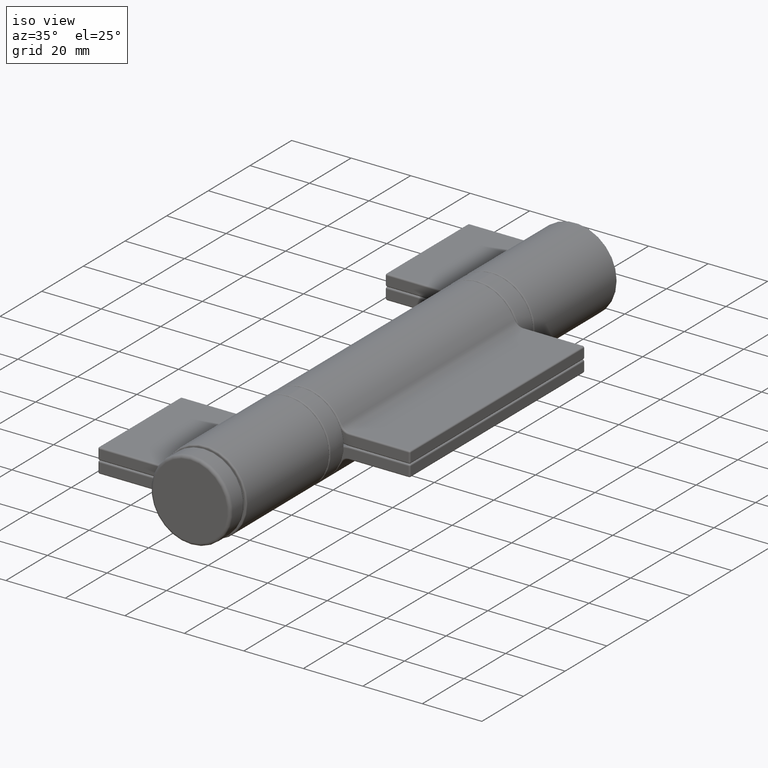
[diagram: clean part render]
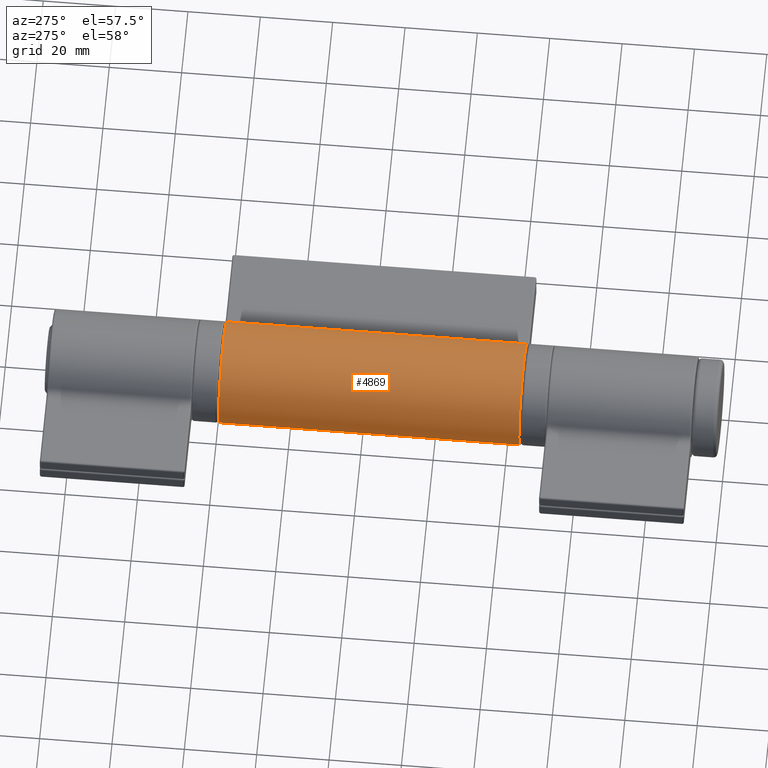
[diagram: tour spotlight — one face highlighted and labeled with its STEP entity id]
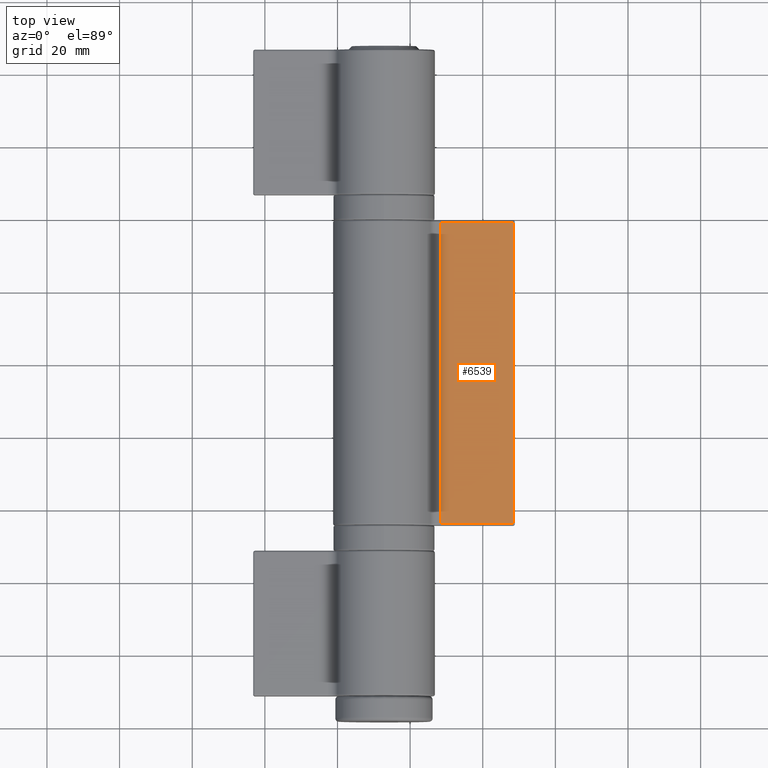
[diagram: tour spotlight — one face highlighted and labeled with its STEP entity id]
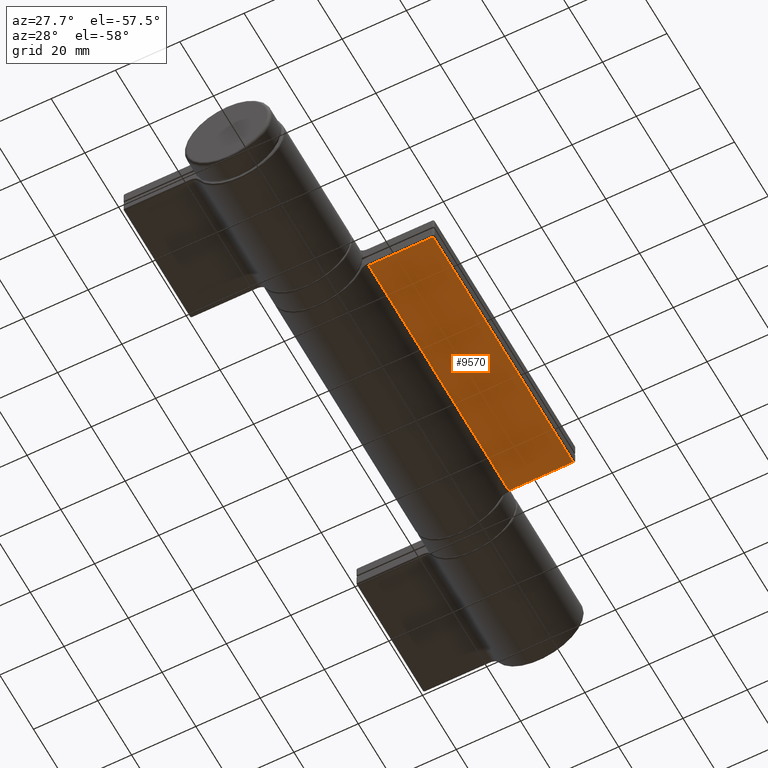
[diagram: tour spotlight — one face highlighted and labeled with its STEP entity id]
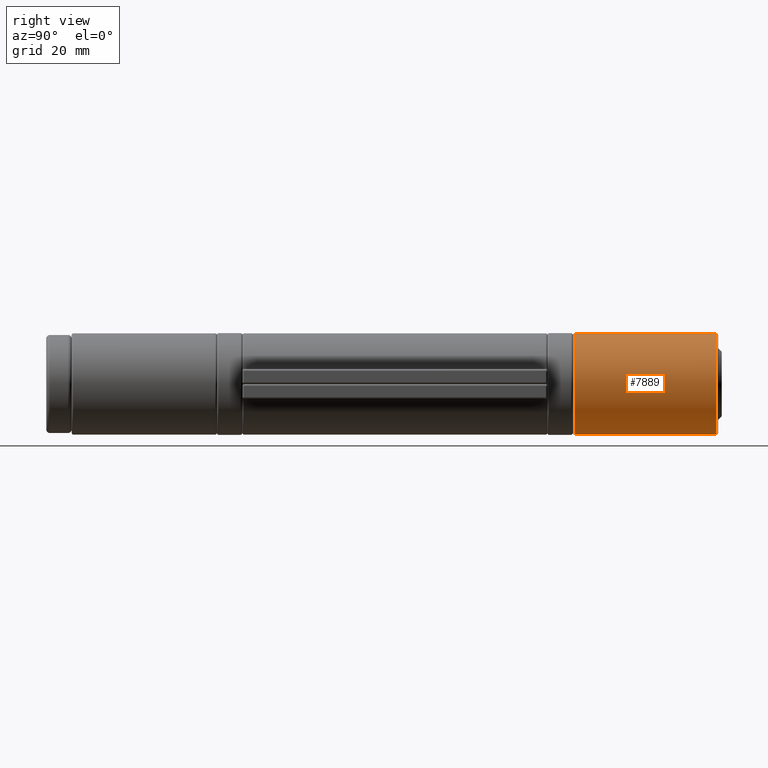
[diagram: tour spotlight — one face highlighted and labeled with its STEP entity id]
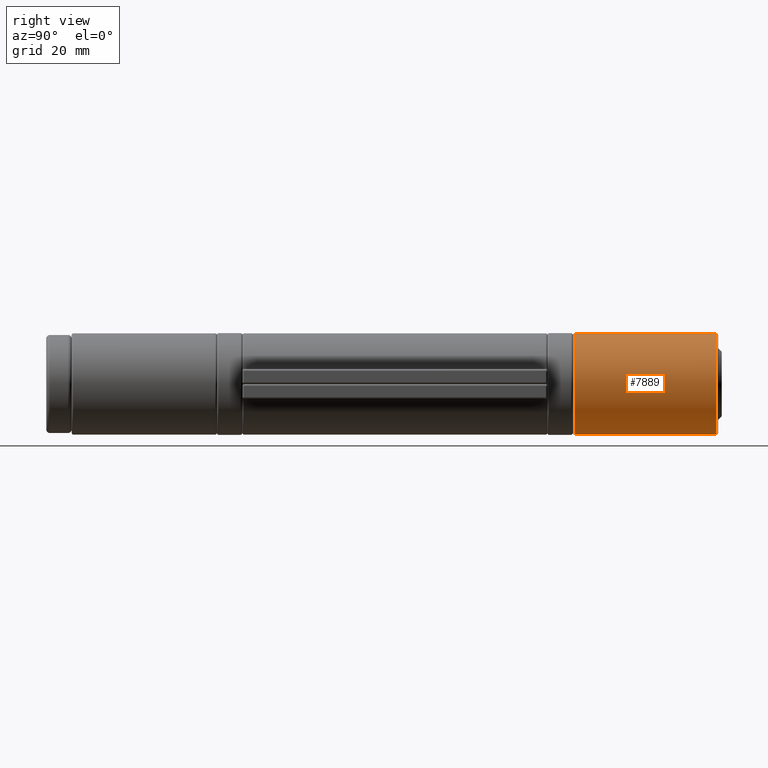
[diagram: tour spotlight — one face highlighted and labeled with its STEP entity id]
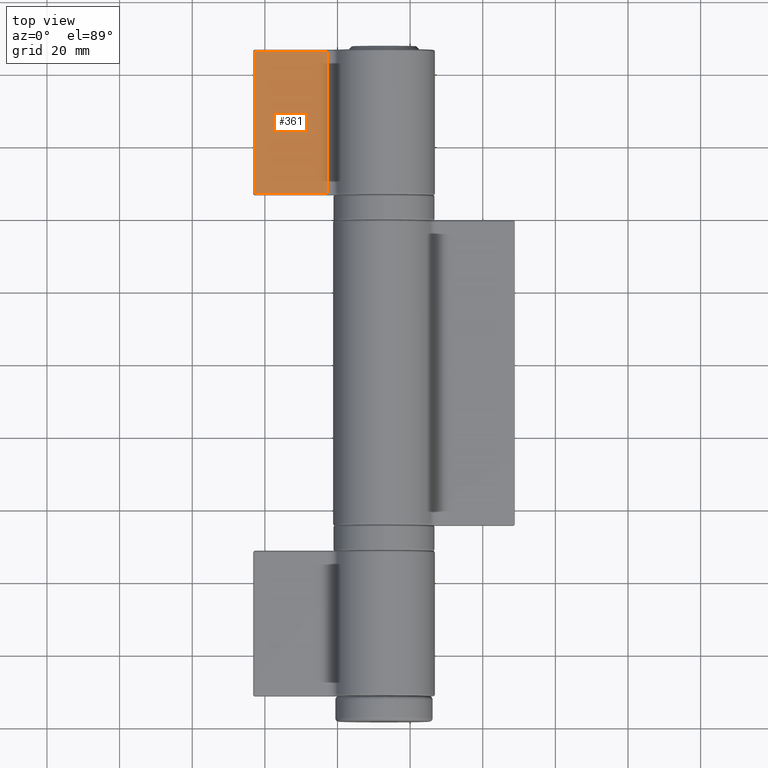
[diagram: tour spotlight — one face highlighted and labeled with its STEP entity id]
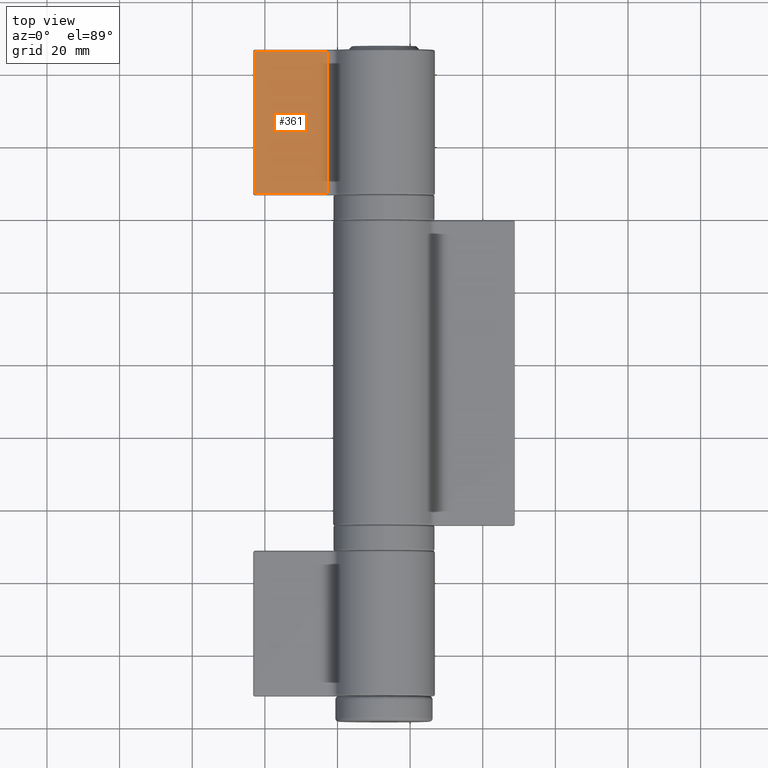
[diagram: tour spotlight — one face highlighted and labeled with its STEP entity id]
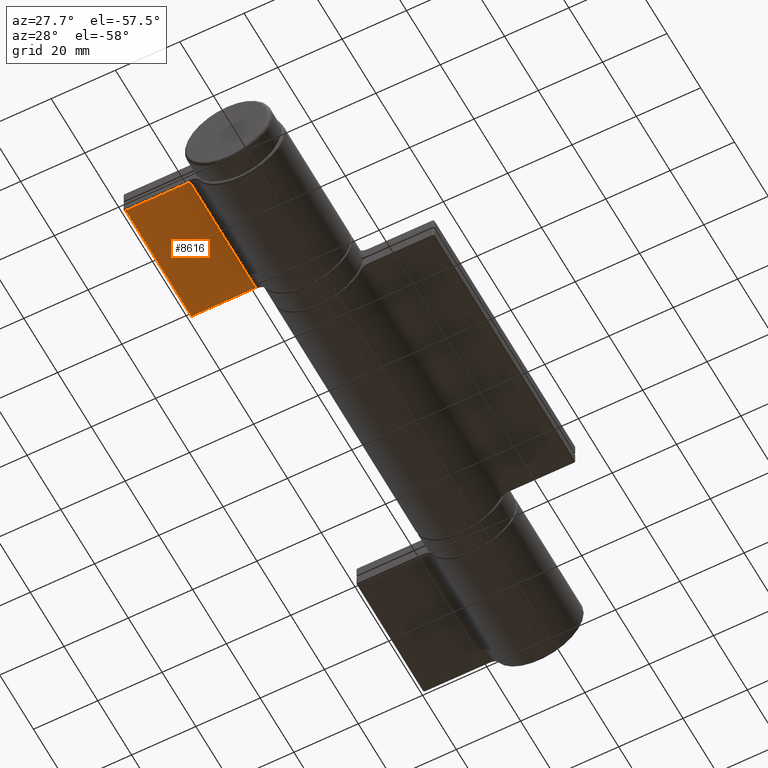
[diagram: tour spotlight — one face highlighted and labeled with its STEP entity id]
A machine part: a face-by-face anatomy tour. The part has 320 B-rep faces; the first image is the clean iso view, then the 8 largest visible faces are spotlighted one at a time (largest first), each with its STEP entity span.

Face 1 — auxiliary view, entity #4869. In plain terms, the highlighted cylindrical surface (partial cylindrical patch) has radius 14 mm, axis along (-0, -1, 0).
Definition (entity closure, byte-faithful):
#456 = CARTESIAN_POINT ( 'NONE',  ( -5.805882352941177160, -41.49999999999995737, 12.73937714740427296 ) ) ;
#471 = AXIS2_PLACEMENT_3D ( 'NONE', #3209, #10594, #4268 ) ;
#939 = DIRECTION ( 'NONE',  ( -0.000000000000000000, -1.000000000000000000, 0.000000000000000000 ) ) ;
#1735 = CIRCLE ( 'NONE', #10100, 13.99999999999999822 ) ;
#1955 = EDGE_LOOP ( 'NONE', ( #2509, #3079, #5969, #3014 ) ) ;
#2195 = EDGE_CURVE ( 'NONE', #10006, #4832, #1735, .T. ) ;
#2249 = CARTESIAN_POINT ( 'NONE',  ( -5.805882352941177160, 41.50000000000000000, 12.73937714740427296 ) ) ;
#2509 = ORIENTED_EDGE ( 'NONE', *, *, #2641, .T. ) ;
#2641 = EDGE_CURVE ( 'NONE', #4832, #6936, #8146, .T. ) ;
#3014 = ORIENTED_EDGE ( 'NONE', *, *, #2195, .T. ) ;
#3078 = CARTESIAN_POINT ( 'NONE',  ( 5.805882352941178048, 42.00000000000000000, 12.73937714740427118 ) ) ;
#3079 = ORIENTED_EDGE ( 'NONE', *, *, #5037, .T. ) ;
#3209 = CARTESIAN_POINT ( 'NONE',  ( 0.000000000000000000, 42.00000000000000000, 0.000000000000000000 ) ) ;
#4153 = DIRECTION ( 'NONE',  ( -0.000000000000000000, -1.000000000000000000, -0.000000000000000000 ) ) ;
#4268 = DIRECTION ( 'NONE',  ( 0.000000000000000000, 0.000000000000000000, -1.000000000000000000 ) ) ;
#4712 = VERTEX_POINT ( 'NONE', #456 ) ;
#4832 = VERTEX_POINT ( 'NONE', #5642 ) ;
#4837 = VECTOR ( 'NONE', #8911, 1000.000000000000000 ) ;
#4869 = ADVANCED_FACE ( 'NONE', ( #7884 ), #5624, .T. ) ;
#5001 = DIRECTION ( 'NONE',  ( 0.000000000000000000, 0.000000000000000000, 1.000000000000000000 ) ) ;
#5037 = EDGE_CURVE ( 'NONE', #6936, #4712, #6945, .T. ) ;
#5624 = CYLINDRICAL_SURFACE ( 'NONE', #471, 13.99999999999999822 ) ;
#5642 = CARTESIAN_POINT ( 'NONE',  ( 5.805882352941178048, 41.50000000000000000, 12.73937714740427118 ) ) ;
#5969 = ORIENTED_EDGE ( 'NONE', *, *, #8941, .F. ) ;
#6562 = AXIS2_PLACEMENT_3D ( 'NONE', #9390, #7759, #7790 ) ;
#6936 = VERTEX_POINT ( 'NONE', #7824 ) ;
#6945 = CIRCLE ( 'NONE', #6562, 13.99999999999999822 ) ;
#7017 = LINE ( 'NONE', #10818, #9356 ) ;
#7759 = DIRECTION ( 'NONE',  ( 0.000000000000000000, 1.000000000000000000, -0.000000000000000000 ) ) ;
#7790 = DIRECTION ( 'NONE',  ( 0.000000000000000000, 0.000000000000000000, 1.000000000000000000 ) ) ;
#7824 = CARTESIAN_POINT ( 'NONE',  ( 5.805882352941178048, -41.49999999999997158, 12.73937714740427118 ) ) ;
#7884 = FACE_OUTER_BOUND ( 'NONE', #1955, .T. ) ;
#8146 = LINE ( 'NONE', #3078, #4837 ) ;
#8911 = DIRECTION ( 'NONE',  ( -0.000000000000000000, -1.000000000000000000, -0.000000000000000000 ) ) ;
#8941 = EDGE_CURVE ( 'NONE', #10006, #4712, #7017, .T. ) ;
#9182 = CARTESIAN_POINT ( 'NONE',  ( 0.000000000000000000, 41.50000000000000000, 0.000000000000000000 ) ) ;
#9356 = VECTOR ( 'NONE', #4153, 1000.000000000000000 ) ;
#9390 = CARTESIAN_POINT ( 'NONE',  ( 0.000000000000000000, -41.50000000000000000, 0.000000000000000000 ) ) ;
#10006 = VERTEX_POINT ( 'NONE', #2249 ) ;
#10100 = AXIS2_PLACEMENT_3D ( 'NONE', #9182, #939, #5001 ) ;
#10594 = DIRECTION ( 'NONE',  ( -0.000000000000000000, -1.000000000000000000, -0.000000000000000000 ) ) ;
#10818 = CARTESIAN_POINT ( 'NONE',  ( -5.805882352941177160, 42.00000000000000000, 12.73937714740427296 ) ) ;

Face 2 — top view, entity #6539. In plain terms, the highlighted planar face has unit normal (0, 0, -1).
Definition (entity closure, byte-faithful):
#253 = CARTESIAN_POINT ( 'NONE',  ( -4.049999999999998934, 41.50000000000000000, 35.50000000000000000 ) ) ;
#326 = VERTEX_POINT ( 'NONE', #1258 ) ;
#406 = DIRECTION ( 'NONE',  ( 1.000000000000000000, 0.000000000000000000, -1.689877809520019662E-16 ) ) ;
#522 = EDGE_CURVE ( 'NONE', #326, #4129, #4996, .T. ) ;
#827 = VECTOR ( 'NONE', #4889, 1000.000000000000000 ) ;
#1038 = AXIS2_PLACEMENT_3D ( 'NONE', #8756, #406, #2043 ) ;
#1253 = PLANE ( 'NONE',  #1038 ) ;
#1258 = CARTESIAN_POINT ( 'NONE',  ( -4.050000000000002487, -41.49999999999997158, 15.46924367899090313 ) ) ;
#1555 = CARTESIAN_POINT ( 'NONE',  ( -4.050000000000005151, -41.50000000000000000, 6.844005128556086792E-16 ) ) ;
#1828 = CARTESIAN_POINT ( 'NONE',  ( -4.049999999999998934, -41.50000000000000000, 35.50000000000000000 ) ) ;
#2043 = DIRECTION ( 'NONE',  ( -1.689877809520019662E-16, 0.000000000000000000, -1.000000000000000000 ) ) ;
#2121 = EDGE_CURVE ( 'NONE', #4129, #9383, #6302, .T. ) ;
#2339 = CARTESIAN_POINT ( 'NONE',  ( -4.050000000000002487, 42.00000000000000000, 15.46924367899090313 ) ) ;
#2874 = FACE_OUTER_BOUND ( 'NONE', #8608, .T. ) ;
#2932 = VECTOR ( 'NONE', #7423, 1000.000000000000000 ) ;
#3805 = ORIENTED_EDGE ( 'NONE', *, *, #522, .T. ) ;
#3869 = ORIENTED_EDGE ( 'NONE', *, *, #2121, .T. ) ;
#3995 = EDGE_CURVE ( 'NONE', #8536, #326, #7359, .T. ) ;
#4050 = CARTESIAN_POINT ( 'NONE',  ( -4.049999999999998934, 42.00000000000000000, 35.50000000000000000 ) ) ;
#4074 = DIRECTION ( 'NONE',  ( -0.000000000000000000, -1.000000000000000000, -0.000000000000000000 ) ) ;
#4129 = VERTEX_POINT ( 'NONE', #1828 ) ;
#4889 = DIRECTION ( 'NONE',  ( -0.000000000000000000, 1.000000000000000000, -0.000000000000000000 ) ) ;
#4996 = LINE ( 'NONE', #1555, #2932 ) ;
#6302 = LINE ( 'NONE', #4050, #827 ) ;
#6539 = ADVANCED_FACE ( 'NONE', ( #2874 ), #1253, .F. ) ;
#7103 = CARTESIAN_POINT ( 'NONE',  ( -4.050000000000002487, 41.50000000000000000, 15.46924367899090313 ) ) ;
#7359 = LINE ( 'NONE', #2339, #8526 ) ;
#7423 = DIRECTION ( 'NONE',  ( 1.689877809520019662E-16, 0.000000000000000000, 1.000000000000000000 ) ) ;
#7831 = ORIENTED_EDGE ( 'NONE', *, *, #3995, .T. ) ;
#8069 = VECTOR ( 'NONE', #8810, 1000.000000000000000 ) ;
#8285 = ORIENTED_EDGE ( 'NONE', *, *, #9577, .T. ) ;
#8526 = VECTOR ( 'NONE', #4074, 1000.000000000000000 ) ;
#8536 = VERTEX_POINT ( 'NONE', #8845 ) ;
#8608 = EDGE_LOOP ( 'NONE', ( #7831, #3805, #3869, #8285 ) ) ;
#8756 = CARTESIAN_POINT ( 'NONE',  ( -4.050000000000005151, 42.00000000000000000, 6.844005128556086792E-16 ) ) ;
#8810 = DIRECTION ( 'NONE',  ( -1.689877809520019662E-16, -0.000000000000000000, -1.000000000000000000 ) ) ;
#8845 = CARTESIAN_POINT ( 'NONE',  ( -4.050000000000002487, 41.50000000000000000, 15.46924367899090313 ) ) ;
#9383 = VERTEX_POINT ( 'NONE', #253 ) ;
#9577 = EDGE_CURVE ( 'NONE', #9383, #8536, #10248, .T. ) ;
#10248 = LINE ( 'NONE', #7103, #8069 ) ;

Face 3 — auxiliary view, entity #9570. In plain terms, the highlighted planar face has unit normal (0, 0, -1).
Definition (entity closure, byte-faithful):
#16 = LINE ( 'NONE', #9956, #6821 ) ;
#453 = VERTEX_POINT ( 'NONE', #3177 ) ;
#647 = CARTESIAN_POINT ( 'NONE',  ( 4.050000000000002487, 41.50000000000000000, 15.46924367899090136 ) ) ;
#701 = DIRECTION ( 'NONE',  ( 8.449389047600098310E-17, 0.000000000000000000, 1.000000000000000000 ) ) ;
#917 = DIRECTION ( 'NONE',  ( 0.000000000000000000, -1.000000000000000000, 0.000000000000000000 ) ) ;
#1277 = LINE ( 'NONE', #3934, #7984 ) ;
#1344 = CARTESIAN_POINT ( 'NONE',  ( 4.050000000000002487, -41.50000000000000000, 15.46924367899090136 ) ) ;
#1646 = FACE_OUTER_BOUND ( 'NONE', #4118, .T. ) ;
#2136 = DIRECTION ( 'NONE',  ( -8.449389047600098310E-17, 0.000000000000000000, -1.000000000000000000 ) ) ;
#2753 = ORIENTED_EDGE ( 'NONE', *, *, #6686, .F. ) ;
#3055 = ORIENTED_EDGE ( 'NONE', *, *, #7965, .T. ) ;
#3177 = CARTESIAN_POINT ( 'NONE',  ( 4.050000000000003375, 41.50000000000000000, 35.49999999999999289 ) ) ;
#3783 = CARTESIAN_POINT ( 'NONE',  ( 4.050000000000000711, 42.00000000000000000, -3.422002564278038959E-16 ) ) ;
#3934 = CARTESIAN_POINT ( 'NONE',  ( 4.050000000000002487, 42.00000000000000000, 15.46924367899090136 ) ) ;
#4038 = CARTESIAN_POINT ( 'NONE',  ( 4.050000000000003375, -41.50000000000000000, 35.49999999999999289 ) ) ;
#4068 = CARTESIAN_POINT ( 'NONE',  ( 4.050000000000000711, 41.50000000000000000, -3.422002564278038959E-16 ) ) ;
#4118 = EDGE_LOOP ( 'NONE', ( #8015, #4930, #2753, #3055 ) ) ;
#4301 = EDGE_CURVE ( 'NONE', #10630, #6819, #10462, .T. ) ;
#4611 = DIRECTION ( 'NONE',  ( 1.000000000000000000, 0.000000000000000000, -8.449389047600098310E-17 ) ) ;
#4930 = ORIENTED_EDGE ( 'NONE', *, *, #4301, .T. ) ;
#5899 = CARTESIAN_POINT ( 'NONE',  ( 4.050000000000002487, -41.49999999999995737, 15.46924367899090136 ) ) ;
#6243 = VECTOR ( 'NONE', #701, 1000.000000000000000 ) ;
#6686 = EDGE_CURVE ( 'NONE', #10054, #6819, #1277, .T. ) ;
#6819 = VERTEX_POINT ( 'NONE', #5899 ) ;
#6821 = VECTOR ( 'NONE', #917, 1000.000000000000000 ) ;
#7201 = DIRECTION ( 'NONE',  ( -8.449389047600098310E-17, -0.000000000000000000, -1.000000000000000000 ) ) ;
#7232 = DIRECTION ( 'NONE',  ( -0.000000000000000000, -1.000000000000000000, -0.000000000000000000 ) ) ;
#7572 = LINE ( 'NONE', #4068, #6243 ) ;
#7965 = EDGE_CURVE ( 'NONE', #10054, #453, #7572, .T. ) ;
#7984 = VECTOR ( 'NONE', #7232, 1000.000000000000000 ) ;
#8015 = ORIENTED_EDGE ( 'NONE', *, *, #10230, .T. ) ;
#8742 = PLANE ( 'NONE',  #9450 ) ;
#9450 = AXIS2_PLACEMENT_3D ( 'NONE', #3783, #4611, #2136 ) ;
#9570 = ADVANCED_FACE ( 'NONE', ( #1646 ), #8742, .T. ) ;
#9956 = CARTESIAN_POINT ( 'NONE',  ( 4.050000000000003375, 42.00000000000000000, 35.49999999999999289 ) ) ;
#10054 = VERTEX_POINT ( 'NONE', #647 ) ;
#10230 = EDGE_CURVE ( 'NONE', #453, #10630, #16, .T. ) ;
#10462 = LINE ( 'NONE', #1344, #10589 ) ;
#10589 = VECTOR ( 'NONE', #7201, 1000.000000000000000 ) ;
#10630 = VERTEX_POINT ( 'NONE', #4038 ) ;

Face 4 — right view, entity #7889. In plain terms, the highlighted cylindrical surface (partial cylindrical patch) has radius 14 mm, axis along (0, -1, -0).
Definition (entity closure, byte-faithful):
#28 = ORIENTED_EDGE ( 'NONE', *, *, #2601, .T. ) ;
#401 = VECTOR ( 'NONE', #9799, 1000.000000000000000 ) ;
#428 = DIRECTION ( 'NONE',  ( -0.000000000000000000, -1.000000000000000000, -0.000000000000000000 ) ) ;
#622 = CARTESIAN_POINT ( 'NONE',  ( -5.805882352941177160, 20.00000000000000000, 12.73937714740427296 ) ) ;
#706 = DIRECTION ( 'NONE',  ( 0.000000000000000000, 1.000000000000000000, -0.000000000000000000 ) ) ;
#997 = AXIS2_PLACEMENT_3D ( 'NONE', #1405, #8922, #3056 ) ;
#1316 = CARTESIAN_POINT ( 'NONE',  ( -5.805882352941177160, 19.50000000000000000, 12.73937714740427296 ) ) ;
#1400 = FACE_OUTER_BOUND ( 'NONE', #9109, .T. ) ;
#1405 = CARTESIAN_POINT ( 'NONE',  ( 0.000000000000000000, 19.50000000000000000, 0.000000000000000000 ) ) ;
#2123 = CIRCLE ( 'NONE', #6611, 13.99999999999999822 ) ;
#2434 = ORIENTED_EDGE ( 'NONE', *, *, #9931, .T. ) ;
#2587 = CARTESIAN_POINT ( 'NONE',  ( 5.805882352941178048, 19.50000000000000000, 12.73937714740427118 ) ) ;
#2601 = EDGE_CURVE ( 'NONE', #6278, #7101, #9424, .T. ) ;
#2751 = EDGE_CURVE ( 'NONE', #7101, #10123, #2123, .T. ) ;
#3056 = DIRECTION ( 'NONE',  ( 0.000000000000000000, 0.000000000000000000, 1.000000000000000000 ) ) ;
#3423 = ORIENTED_EDGE ( 'NONE', *, *, #5950, .F. ) ;
#3531 = LINE ( 'NONE', #622, #401 ) ;
#4029 = CYLINDRICAL_SURFACE ( 'NONE', #6162, 13.99999999999999822 ) ;
#4032 = CARTESIAN_POINT ( 'NONE',  ( 0.000000000000000000, -19.50000000000000000, 0.000000000000000000 ) ) ;
#4470 = CARTESIAN_POINT ( 'NONE',  ( 5.805882352941178048, -19.50000000000000000, 12.73937714740427118 ) ) ;
#4511 = CARTESIAN_POINT ( 'NONE',  ( 5.805882352941178048, 20.00000000000000000, 12.73937714740427118 ) ) ;
#5137 = VERTEX_POINT ( 'NONE', #1316 ) ;
#5950 = EDGE_CURVE ( 'NONE', #5137, #10123, #3531, .T. ) ;
#6027 = VECTOR ( 'NONE', #428, 1000.000000000000000 ) ;
#6162 = AXIS2_PLACEMENT_3D ( 'NONE', #10397, #8770, #7162 ) ;
#6278 = VERTEX_POINT ( 'NONE', #2587 ) ;
#6611 = AXIS2_PLACEMENT_3D ( 'NONE', #4032, #706, #10693 ) ;
#6652 = CIRCLE ( 'NONE', #997, 13.99999999999999822 ) ;
#7101 = VERTEX_POINT ( 'NONE', #4470 ) ;
#7162 = DIRECTION ( 'NONE',  ( 0.000000000000000000, 0.000000000000000000, -1.000000000000000000 ) ) ;
#7889 = ADVANCED_FACE ( 'NONE', ( #1400 ), #4029, .T. ) ;
#8770 = DIRECTION ( 'NONE',  ( -0.000000000000000000, -1.000000000000000000, -0.000000000000000000 ) ) ;
#8922 = DIRECTION ( 'NONE',  ( -0.000000000000000000, -1.000000000000000000, 0.000000000000000000 ) ) ;
#9109 = EDGE_LOOP ( 'NONE', ( #28, #10765, #3423, #2434 ) ) ;
#9424 = LINE ( 'NONE', #4511, #6027 ) ;
#9799 = DIRECTION ( 'NONE',  ( -0.000000000000000000, -1.000000000000000000, -0.000000000000000000 ) ) ;
#9931 = EDGE_CURVE ( 'NONE', #5137, #6278, #6652, .T. ) ;
#9933 = CARTESIAN_POINT ( 'NONE',  ( -5.805882352941177160, -19.50000000000000000, 12.73937714740427296 ) ) ;
#10123 = VERTEX_POINT ( 'NONE', #9933 ) ;
#10397 = CARTESIAN_POINT ( 'NONE',  ( 0.000000000000000000, 20.00000000000000000, 0.000000000000000000 ) ) ;
#10693 = DIRECTION ( 'NONE',  ( 0.000000000000000000, 0.000000000000000000, 1.000000000000000000 ) ) ;
#10765 = ORIENTED_EDGE ( 'NONE', *, *, #2751, .T. ) ;

Face 5 — right view, entity #7889. In plain terms, the highlighted cylindrical surface (partial cylindrical patch) has radius 14 mm, axis along (0, -1, -0).
Definition (entity closure, byte-faithful):
#28 = ORIENTED_EDGE ( 'NONE', *, *, #2601, .T. ) ;
#401 = VECTOR ( 'NONE', #9799, 1000.000000000000000 ) ;
#428 = DIRECTION ( 'NONE',  ( -0.000000000000000000, -1.000000000000000000, -0.000000000000000000 ) ) ;
#622 = CARTESIAN_POINT ( 'NONE',  ( -5.805882352941177160, 20.00000000000000000, 12.73937714740427296 ) ) ;
#706 = DIRECTION ( 'NONE',  ( 0.000000000000000000, 1.000000000000000000, -0.000000000000000000 ) ) ;
#997 = AXIS2_PLACEMENT_3D ( 'NONE', #1405, #8922, #3056 ) ;
#1316 = CARTESIAN_POINT ( 'NONE',  ( -5.805882352941177160, 19.50000000000000000, 12.73937714740427296 ) ) ;
#1400 = FACE_OUTER_BOUND ( 'NONE', #9109, .T. ) ;
#1405 = CARTESIAN_POINT ( 'NONE',  ( 0.000000000000000000, 19.50000000000000000, 0.000000000000000000 ) ) ;
#2123 = CIRCLE ( 'NONE', #6611, 13.99999999999999822 ) ;
#2434 = ORIENTED_EDGE ( 'NONE', *, *, #9931, .T. ) ;
#2587 = CARTESIAN_POINT ( 'NONE',  ( 5.805882352941178048, 19.50000000000000000, 12.73937714740427118 ) ) ;
#2601 = EDGE_CURVE ( 'NONE', #6278, #7101, #9424, .T. ) ;
#2751 = EDGE_CURVE ( 'NONE', #7101, #10123, #2123, .T. ) ;
#3056 = DIRECTION ( 'NONE',  ( 0.000000000000000000, 0.000000000000000000, 1.000000000000000000 ) ) ;
#3423 = ORIENTED_EDGE ( 'NONE', *, *, #5950, .F. ) ;
#3531 = LINE ( 'NONE', #622, #401 ) ;
#4029 = CYLINDRICAL_SURFACE ( 'NONE', #6162, 13.99999999999999822 ) ;
#4032 = CARTESIAN_POINT ( 'NONE',  ( 0.000000000000000000, -19.50000000000000000, 0.000000000000000000 ) ) ;
#4470 = CARTESIAN_POINT ( 'NONE',  ( 5.805882352941178048, -19.50000000000000000, 12.73937714740427118 ) ) ;
#4511 = CARTESIAN_POINT ( 'NONE',  ( 5.805882352941178048, 20.00000000000000000, 12.73937714740427118 ) ) ;
#5137 = VERTEX_POINT ( 'NONE', #1316 ) ;
#5950 = EDGE_CURVE ( 'NONE', #5137, #10123, #3531, .T. ) ;
#6027 = VECTOR ( 'NONE', #428, 1000.000000000000000 ) ;
#6162 = AXIS2_PLACEMENT_3D ( 'NONE', #10397, #8770, #7162 ) ;
#6278 = VERTEX_POINT ( 'NONE', #2587 ) ;
#6611 = AXIS2_PLACEMENT_3D ( 'NONE', #4032, #706, #10693 ) ;
#6652 = CIRCLE ( 'NONE', #997, 13.99999999999999822 ) ;
#7101 = VERTEX_POINT ( 'NONE', #4470 ) ;
#7162 = DIRECTION ( 'NONE',  ( 0.000000000000000000, 0.000000000000000000, -1.000000000000000000 ) ) ;
#7889 = ADVANCED_FACE ( 'NONE', ( #1400 ), #4029, .T. ) ;
#8770 = DIRECTION ( 'NONE',  ( -0.000000000000000000, -1.000000000000000000, -0.000000000000000000 ) ) ;
#8922 = DIRECTION ( 'NONE',  ( -0.000000000000000000, -1.000000000000000000, 0.000000000000000000 ) ) ;
#9109 = EDGE_LOOP ( 'NONE', ( #28, #10765, #3423, #2434 ) ) ;
#9424 = LINE ( 'NONE', #4511, #6027 ) ;
#9799 = DIRECTION ( 'NONE',  ( -0.000000000000000000, -1.000000000000000000, -0.000000000000000000 ) ) ;
#9931 = EDGE_CURVE ( 'NONE', #5137, #6278, #6652, .T. ) ;
#9933 = CARTESIAN_POINT ( 'NONE',  ( -5.805882352941177160, -19.50000000000000000, 12.73937714740427296 ) ) ;
#10123 = VERTEX_POINT ( 'NONE', #9933 ) ;
#10397 = CARTESIAN_POINT ( 'NONE',  ( 0.000000000000000000, 20.00000000000000000, 0.000000000000000000 ) ) ;
#10693 = DIRECTION ( 'NONE',  ( 0.000000000000000000, 0.000000000000000000, 1.000000000000000000 ) ) ;
#10765 = ORIENTED_EDGE ( 'NONE', *, *, #2751, .T. ) ;

Face 6 — top view, entity #361. In plain terms, the highlighted planar face has unit normal (0, 0, 1).
Definition (entity closure, byte-faithful):
#68 = CARTESIAN_POINT ( 'NONE',  ( 4.050000000000003375, 19.50000000000000000, 35.50000000000000000 ) ) ;
#232 = ORIENTED_EDGE ( 'NONE', *, *, #3455, .T. ) ;
#360 = ORIENTED_EDGE ( 'NONE', *, *, #7705, .T. ) ;
#361 = ADVANCED_FACE ( 'NONE', ( #1889 ), #7153, .T. ) ;
#593 = CARTESIAN_POINT ( 'NONE',  ( 4.050000000000002487, 19.50000000000000000, 15.46924367899090136 ) ) ;
#1016 = LINE ( 'NONE', #6180, #4910 ) ;
#1592 = VECTOR ( 'NONE', #9830, 1000.000000000000000 ) ;
#1636 = EDGE_CURVE ( 'NONE', #7973, #8919, #2663, .T. ) ;
#1889 = FACE_OUTER_BOUND ( 'NONE', #2621, .T. ) ;
#2230 = DIRECTION ( 'NONE',  ( 0.000000000000000000, -1.000000000000000000, 0.000000000000000000 ) ) ;
#2388 = VECTOR ( 'NONE', #6037, 1000.000000000000000 ) ;
#2621 = EDGE_LOOP ( 'NONE', ( #5998, #360, #8310, #232 ) ) ;
#2663 = LINE ( 'NONE', #7656, #2388 ) ;
#3455 = EDGE_CURVE ( 'NONE', #7973, #6285, #3825, .T. ) ;
#3825 = LINE ( 'NONE', #6239, #1592 ) ;
#3862 = DIRECTION ( 'NONE',  ( -8.449389047600097077E-17, 0.000000000000000000, -1.000000000000000000 ) ) ;
#4341 = LINE ( 'NONE', #7993, #5878 ) ;
#4910 = VECTOR ( 'NONE', #7022, 1000.000000000000000 ) ;
#5389 = EDGE_CURVE ( 'NONE', #6285, #9532, #4341, .T. ) ;
#5878 = VECTOR ( 'NONE', #2230, 1000.000000000000000 ) ;
#5998 = ORIENTED_EDGE ( 'NONE', *, *, #5389, .T. ) ;
#6037 = DIRECTION ( 'NONE',  ( -0.000000000000000000, -1.000000000000000000, -0.000000000000000000 ) ) ;
#6180 = CARTESIAN_POINT ( 'NONE',  ( 4.050000000000002487, -19.50000000000000000, 15.46924367899090136 ) ) ;
#6239 = CARTESIAN_POINT ( 'NONE',  ( 4.050000000000000711, 19.50000000000000000, -3.422002564278038959E-16 ) ) ;
#6285 = VERTEX_POINT ( 'NONE', #68 ) ;
#7022 = DIRECTION ( 'NONE',  ( -8.449389047600097077E-17, -0.000000000000000000, -1.000000000000000000 ) ) ;
#7087 = DIRECTION ( 'NONE',  ( 1.000000000000000000, 0.000000000000000000, -8.449389047600097077E-17 ) ) ;
#7153 = PLANE ( 'NONE',  #10641 ) ;
#7656 = CARTESIAN_POINT ( 'NONE',  ( 4.050000000000002487, 20.00000000000000000, 15.46924367899090136 ) ) ;
#7705 = EDGE_CURVE ( 'NONE', #9532, #8919, #1016, .T. ) ;
#7900 = CARTESIAN_POINT ( 'NONE',  ( 4.050000000000003375, -19.50000000000000000, 35.50000000000000000 ) ) ;
#7973 = VERTEX_POINT ( 'NONE', #593 ) ;
#7993 = CARTESIAN_POINT ( 'NONE',  ( 4.050000000000003375, 20.00000000000000000, 35.50000000000000000 ) ) ;
#8310 = ORIENTED_EDGE ( 'NONE', *, *, #1636, .F. ) ;
#8919 = VERTEX_POINT ( 'NONE', #9775 ) ;
#9532 = VERTEX_POINT ( 'NONE', #7900 ) ;
#9775 = CARTESIAN_POINT ( 'NONE',  ( 4.050000000000002487, -19.50000000000000000, 15.46924367899090136 ) ) ;
#9830 = DIRECTION ( 'NONE',  ( 8.449389047600097077E-17, 0.000000000000000000, 1.000000000000000000 ) ) ;
#10386 = CARTESIAN_POINT ( 'NONE',  ( 4.050000000000000711, 20.00000000000000000, -3.422002564278038959E-16 ) ) ;
#10641 = AXIS2_PLACEMENT_3D ( 'NONE', #10386, #7087, #3862 ) ;

Face 7 — top view, entity #361. In plain terms, the highlighted planar face has unit normal (0, 0, 1).
Definition (entity closure, byte-faithful):
#68 = CARTESIAN_POINT ( 'NONE',  ( 4.050000000000003375, 19.50000000000000000, 35.50000000000000000 ) ) ;
#232 = ORIENTED_EDGE ( 'NONE', *, *, #3455, .T. ) ;
#360 = ORIENTED_EDGE ( 'NONE', *, *, #7705, .T. ) ;
#361 = ADVANCED_FACE ( 'NONE', ( #1889 ), #7153, .T. ) ;
#593 = CARTESIAN_POINT ( 'NONE',  ( 4.050000000000002487, 19.50000000000000000, 15.46924367899090136 ) ) ;
#1016 = LINE ( 'NONE', #6180, #4910 ) ;
#1592 = VECTOR ( 'NONE', #9830, 1000.000000000000000 ) ;
#1636 = EDGE_CURVE ( 'NONE', #7973, #8919, #2663, .T. ) ;
#1889 = FACE_OUTER_BOUND ( 'NONE', #2621, .T. ) ;
#2230 = DIRECTION ( 'NONE',  ( 0.000000000000000000, -1.000000000000000000, 0.000000000000000000 ) ) ;
#2388 = VECTOR ( 'NONE', #6037, 1000.000000000000000 ) ;
#2621 = EDGE_LOOP ( 'NONE', ( #5998, #360, #8310, #232 ) ) ;
#2663 = LINE ( 'NONE', #7656, #2388 ) ;
#3455 = EDGE_CURVE ( 'NONE', #7973, #6285, #3825, .T. ) ;
#3825 = LINE ( 'NONE', #6239, #1592 ) ;
#3862 = DIRECTION ( 'NONE',  ( -8.449389047600097077E-17, 0.000000000000000000, -1.000000000000000000 ) ) ;
#4341 = LINE ( 'NONE', #7993, #5878 ) ;
#4910 = VECTOR ( 'NONE', #7022, 1000.000000000000000 ) ;
#5389 = EDGE_CURVE ( 'NONE', #6285, #9532, #4341, .T. ) ;
#5878 = VECTOR ( 'NONE', #2230, 1000.000000000000000 ) ;
#5998 = ORIENTED_EDGE ( 'NONE', *, *, #5389, .T. ) ;
#6037 = DIRECTION ( 'NONE',  ( -0.000000000000000000, -1.000000000000000000, -0.000000000000000000 ) ) ;
#6180 = CARTESIAN_POINT ( 'NONE',  ( 4.050000000000002487, -19.50000000000000000, 15.46924367899090136 ) ) ;
#6239 = CARTESIAN_POINT ( 'NONE',  ( 4.050000000000000711, 19.50000000000000000, -3.422002564278038959E-16 ) ) ;
#6285 = VERTEX_POINT ( 'NONE', #68 ) ;
#7022 = DIRECTION ( 'NONE',  ( -8.449389047600097077E-17, -0.000000000000000000, -1.000000000000000000 ) ) ;
#7087 = DIRECTION ( 'NONE',  ( 1.000000000000000000, 0.000000000000000000, -8.449389047600097077E-17 ) ) ;
#7153 = PLANE ( 'NONE',  #10641 ) ;
#7656 = CARTESIAN_POINT ( 'NONE',  ( 4.050000000000002487, 20.00000000000000000, 15.46924367899090136 ) ) ;
#7705 = EDGE_CURVE ( 'NONE', #9532, #8919, #1016, .T. ) ;
#7900 = CARTESIAN_POINT ( 'NONE',  ( 4.050000000000003375, -19.50000000000000000, 35.50000000000000000 ) ) ;
#7973 = VERTEX_POINT ( 'NONE', #593 ) ;
#7993 = CARTESIAN_POINT ( 'NONE',  ( 4.050000000000003375, 20.00000000000000000, 35.50000000000000000 ) ) ;
#8310 = ORIENTED_EDGE ( 'NONE', *, *, #1636, .F. ) ;
#8919 = VERTEX_POINT ( 'NONE', #9775 ) ;
#9532 = VERTEX_POINT ( 'NONE', #7900 ) ;
#9775 = CARTESIAN_POINT ( 'NONE',  ( 4.050000000000002487, -19.50000000000000000, 15.46924367899090136 ) ) ;
#9830 = DIRECTION ( 'NONE',  ( 8.449389047600097077E-17, 0.000000000000000000, 1.000000000000000000 ) ) ;
#10386 = CARTESIAN_POINT ( 'NONE',  ( 4.050000000000000711, 20.00000000000000000, -3.422002564278038959E-16 ) ) ;
#10641 = AXIS2_PLACEMENT_3D ( 'NONE', #10386, #7087, #3862 ) ;

Face 8 — auxiliary view, entity #8616. In plain terms, the highlighted planar face has unit normal (0, 0, 1).
Definition (entity closure, byte-faithful):
#316 = VERTEX_POINT ( 'NONE', #7844 ) ;
#896 = VERTEX_POINT ( 'NONE', #5345 ) ;
#1071 = VECTOR ( 'NONE', #10265, 1000.000000000000000 ) ;
#1202 = CARTESIAN_POINT ( 'NONE',  ( -4.050000000000002487, -19.50000000000000000, 15.46924367899090313 ) ) ;
#1245 = VECTOR ( 'NONE', #10007, 1000.000000000000000 ) ;
#1459 = ORIENTED_EDGE ( 'NONE', *, *, #2951, .T. ) ;
#1576 = VECTOR ( 'NONE', #6337, 1000.000000000000000 ) ;
#1842 = LINE ( 'NONE', #5503, #1576 ) ;
#1859 = LINE ( 'NONE', #9370, #1071 ) ;
#2425 = VERTEX_POINT ( 'NONE', #6147 ) ;
#2951 = EDGE_CURVE ( 'NONE', #5387, #2425, #1842, .T. ) ;
#3044 = CARTESIAN_POINT ( 'NONE',  ( -4.049999999999998934, 20.00000000000000000, 35.50000000000000000 ) ) ;
#3362 = CARTESIAN_POINT ( 'NONE',  ( -4.050000000000002487, 19.50000000000000000, 15.46924367899090313 ) ) ;
#3576 = ORIENTED_EDGE ( 'NONE', *, *, #9080, .T. ) ;
#3743 = EDGE_CURVE ( 'NONE', #896, #5387, #1859, .T. ) ;
#3806 = EDGE_CURVE ( 'NONE', #2425, #316, #10739, .T. ) ;
#3922 = PLANE ( 'NONE',  #5241 ) ;
#4096 = VECTOR ( 'NONE', #5801, 1000.000000000000000 ) ;
#5201 = EDGE_LOOP ( 'NONE', ( #6933, #1459, #5806, #3576 ) ) ;
#5241 = AXIS2_PLACEMENT_3D ( 'NONE', #10660, #8202, #5664 ) ;
#5345 = CARTESIAN_POINT ( 'NONE',  ( -4.050000000000002487, 19.50000000000000000, 15.46924367899090313 ) ) ;
#5387 = VERTEX_POINT ( 'NONE', #1202 ) ;
#5503 = CARTESIAN_POINT ( 'NONE',  ( -4.050000000000005151, -19.50000000000000000, 6.844005128556086792E-16 ) ) ;
#5664 = DIRECTION ( 'NONE',  ( -1.689877809520019415E-16, 0.000000000000000000, -1.000000000000000000 ) ) ;
#5801 = DIRECTION ( 'NONE',  ( -0.000000000000000000, 1.000000000000000000, -0.000000000000000000 ) ) ;
#5806 = ORIENTED_EDGE ( 'NONE', *, *, #3806, .T. ) ;
#6147 = CARTESIAN_POINT ( 'NONE',  ( -4.049999999999998934, -19.50000000000000000, 35.50000000000000000 ) ) ;
#6337 = DIRECTION ( 'NONE',  ( 1.689877809520019415E-16, 0.000000000000000000, 1.000000000000000000 ) ) ;
#6757 = LINE ( 'NONE', #3362, #1245 ) ;
#6933 = ORIENTED_EDGE ( 'NONE', *, *, #3743, .T. ) ;
#7700 = FACE_OUTER_BOUND ( 'NONE', #5201, .T. ) ;
#7844 = CARTESIAN_POINT ( 'NONE',  ( -4.049999999999998934, 19.50000000000000000, 35.50000000000000000 ) ) ;
#8202 = DIRECTION ( 'NONE',  ( 1.000000000000000000, 0.000000000000000000, -1.689877809520019415E-16 ) ) ;
#8616 = ADVANCED_FACE ( 'NONE', ( #7700 ), #3922, .F. ) ;
#9080 = EDGE_CURVE ( 'NONE', #316, #896, #6757, .T. ) ;
#9370 = CARTESIAN_POINT ( 'NONE',  ( -4.050000000000002487, 20.00000000000000000, 15.46924367899090313 ) ) ;
#10007 = DIRECTION ( 'NONE',  ( -1.689877809520019415E-16, -0.000000000000000000, -1.000000000000000000 ) ) ;
#10265 = DIRECTION ( 'NONE',  ( -0.000000000000000000, -1.000000000000000000, -0.000000000000000000 ) ) ;
#10660 = CARTESIAN_POINT ( 'NONE',  ( -4.050000000000005151, 20.00000000000000000, 6.844005128556086792E-16 ) ) ;
#10739 = LINE ( 'NONE', #3044, #4096 ) ;